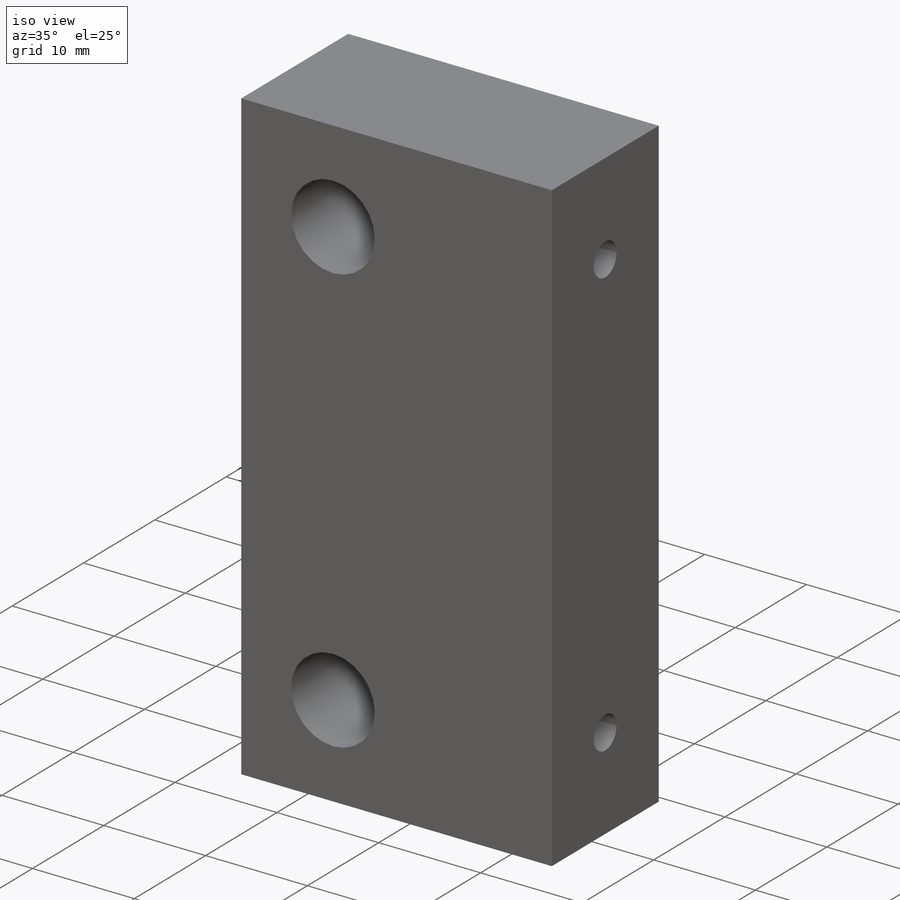
[diagram: iso view]
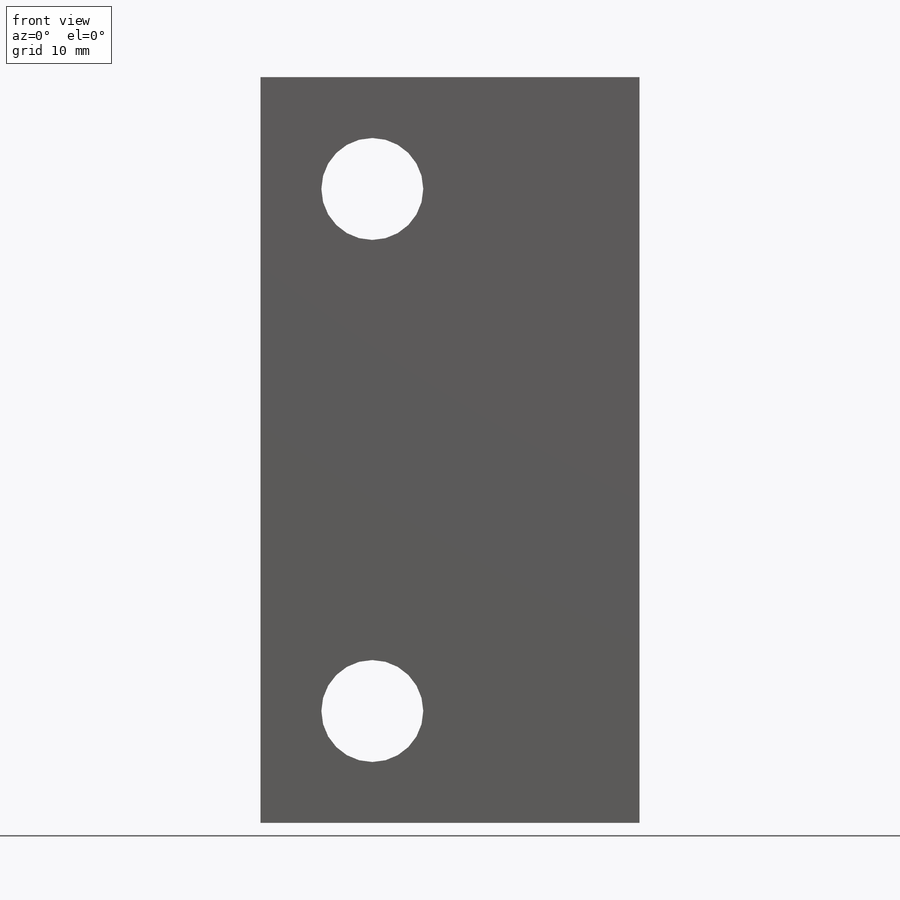
[diagram: front view]
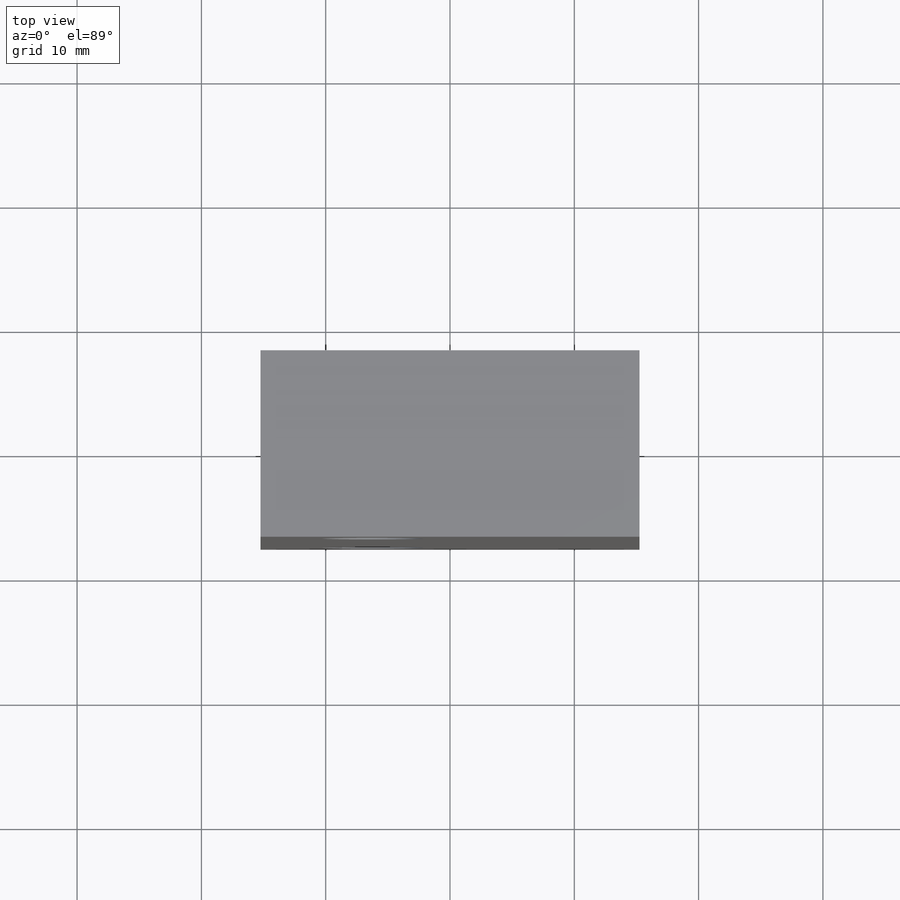
[diagram: top view]
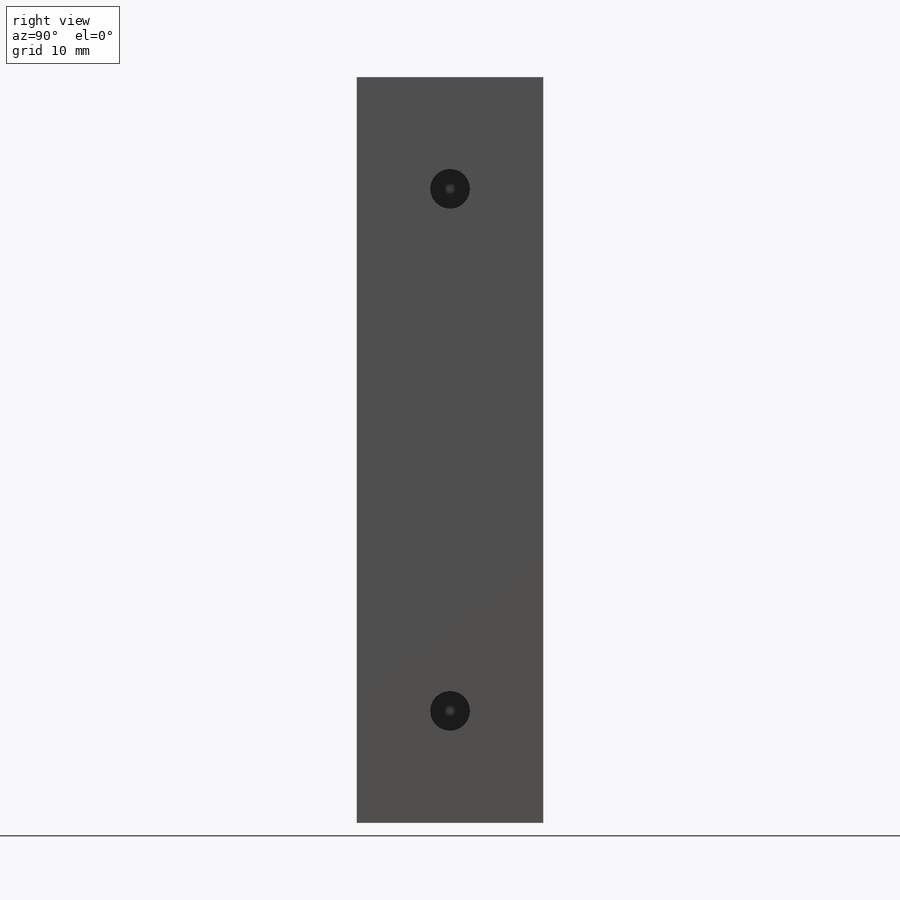
[diagram: right view]
SOLIDWORKS PART (.sldprt)
format: sldprt  version: not decoded by parser v0  size: 183,296 bytes
history: native  units: mm
features: sketch x3, cut_extrude x2, material x1, extrude x1 (+13 scaffold rows collapsed)
feature tree (20):
  scaffold x13  (default folders/planes/origin — collapsed)
  material  "Material <not specified>"
  sketch  "Sketch1"  dims[D1=15.0mm D2=30.5mm D3=20.0mm]
  extrude  "Boss-Extrude1"  Depth=60mm
  sketch  "Sketch2"  dims[c1.D1=5.0mm c1.D2=5.0mm c1.D3=5.0mm c1.D4=2.5mm c2.D1=8.0mm c2.D3=8.0mm c2.D4=8.0mm c2.D5=8.0mm c3.D3=8.0mm c3.D5=8.2mm c3.D1=5.0mm c3.D2=42.0mm c4.D3=3.5mm c4.D1=9.0mm c5.D3=8.5mm c5.D4=9.0mm c5.D5=13.5mm c6.D3=9.0mm c6.D5=21.5mm]
  cut_extrude  "Cut-Extrude1"  [1 undecoded]
  sketch  "Sketch3"  dims[c1.D1=4.2mm c1.D2=4.2mm c1.D3=4.2mm c1.D4=1.75mm c2.D1=9.0mm c2.D2=9.0mm c2.D3=7.5mm]
  cut_extrude  "Cut-Extrude2"  Depth=15mm
decode coverage: 5 of 6 modeling features carry decoded parameters
note: 1 parameter value undecoded
note: suppression state not decoded; provenance and decode notes live in map.json
